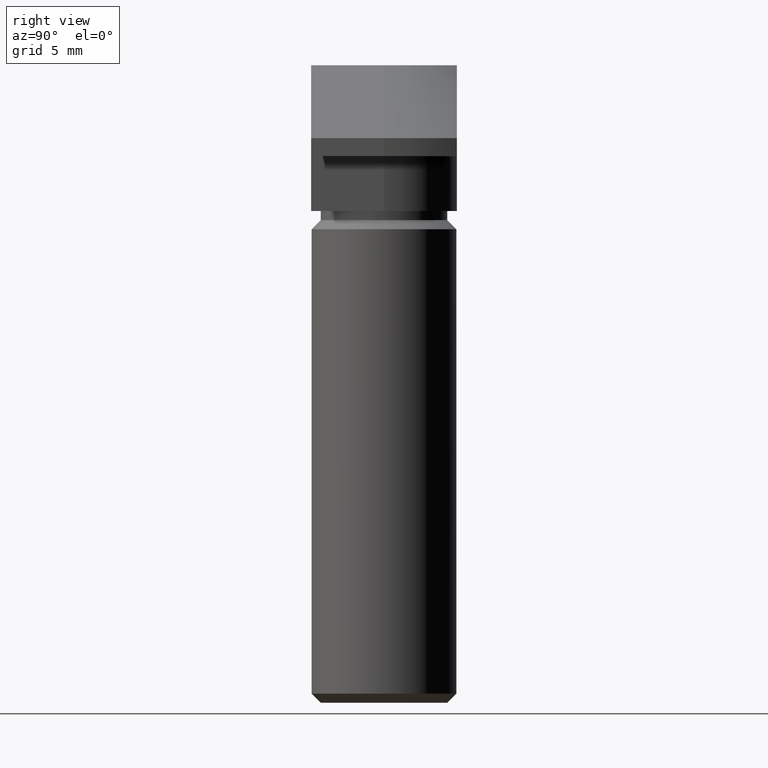
[diagram: clean part render]
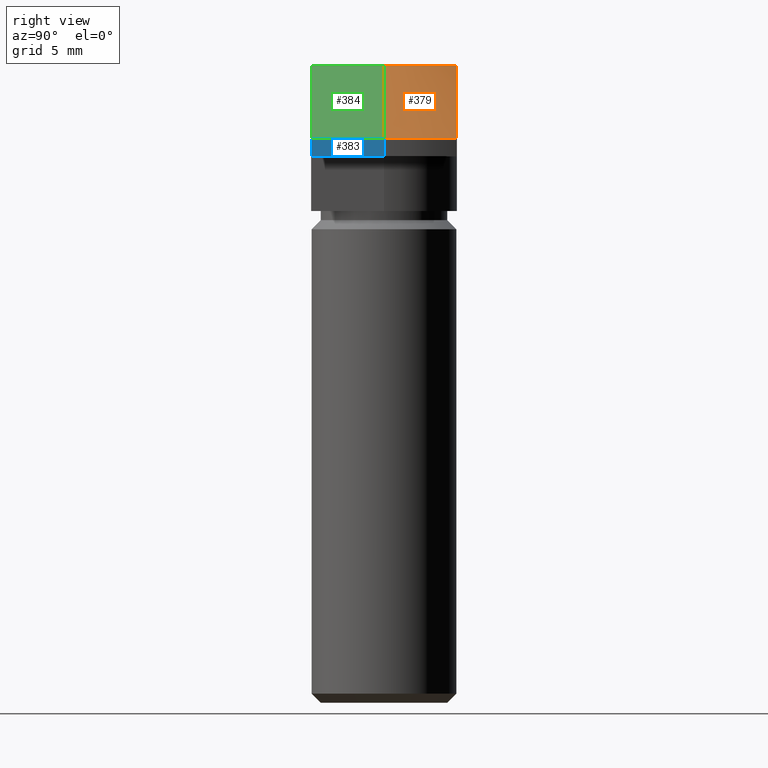
[diagram: same view with three faces highlighted in distinct colors, each labeled with its STEP entity id]
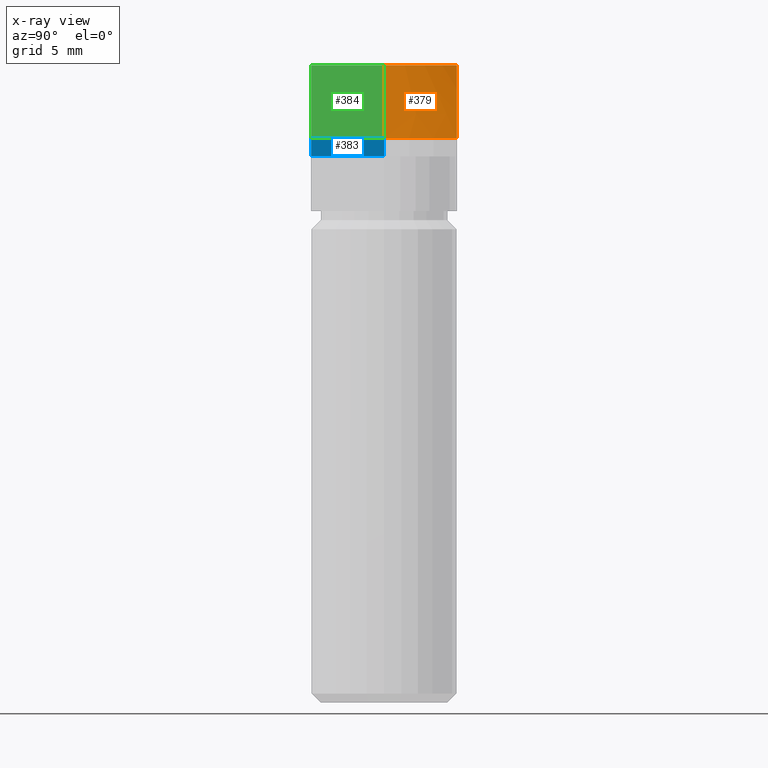
[diagram: x-ray of the same camera — body ghosted, the three highlighted faces saturated]
A machine part, right view with three faces highlighted in distinct colors.
The next image is the same camera in x-ray (body ghosted, the three faces saturated) — at least one of them is partly hidden behind the body in this view.
Their STEP definitions:

[orange] entity #379 — the highlighted conical surface has half-angle 45 deg.
#15=(
BOUNDED_CURVE()
B_SPLINE_CURVE(2,(#610,#611,#612),.UNSPECIFIED.,.F.,.F.)
B_SPLINE_CURVE_WITH_KNOTS((3,3),(0.,0.645810133031387),.UNSPECIFIED.)
CURVE()
GEOMETRIC_REPRESENTATION_ITEM()
RATIONAL_B_SPLINE_CURVE((1.,1.07257323111151,1.))
REPRESENTATION_ITEM('')
);
#35=LINE('',#616,#69);
#69=VECTOR('',#500,5.65685424949238);
#121=FACE_OUTER_BOUND('',#149,.T.);
#149=EDGE_LOOP('',(#305,#306,#307,#308));
#171=CIRCLE('',#416,5.);
#172=CIRCLE('',#417,9.);
#198=VERTEX_POINT('',#608);
#199=VERTEX_POINT('',#609);
#200=VERTEX_POINT('',#613);
#201=VERTEX_POINT('',#615);
#239=EDGE_CURVE('',#198,#199,#15,.T.);
#240=EDGE_CURVE('',#200,#198,#171,.T.);
#241=EDGE_CURVE('',#200,#201,#35,.T.);
#242=EDGE_CURVE('',#201,#199,#172,.T.);
#305=ORIENTED_EDGE('',*,*,#239,.F.);
#306=ORIENTED_EDGE('',*,*,#240,.F.);
#307=ORIENTED_EDGE('',*,*,#241,.T.);
#308=ORIENTED_EDGE('',*,*,#242,.T.);
#365=CONICAL_SURFACE('',#415,7.,45.);
#379=ADVANCED_FACE('',(#121),#365,.T.);
#415=AXIS2_PLACEMENT_3D('',#607,#496,#497);
#416=AXIS2_PLACEMENT_3D('',#614,#498,#499);
#417=AXIS2_PLACEMENT_3D('',#617,#501,#502);
#496=DIRECTION('center_axis',(0.,0.,-1.));
#497=DIRECTION('ref_axis',(1.,0.,0.));
#498=DIRECTION('center_axis',(2.04289535270664E-17,0.,1.));
#499=DIRECTION('ref_axis',(1.,0.,0.));
#500=DIRECTION('',(0.707106781186547,0.,-0.707106781186548));
#501=DIRECTION('center_axis',(2.9781283147877E-16,2.9781283147877E-16,1.));
#502=DIRECTION('ref_axis',(1.,1.2335811384724E-16,-3.08395284618099E-16));
#607=CARTESIAN_POINT('Origin',(0.,0.,-2.));
#608=CARTESIAN_POINT('',(3.,4.,0.));
#609=CARTESIAN_POINT('',(8.06225774829855,4.,-4.));
#610=CARTESIAN_POINT('Ctrl Pts',(3.,4.,-2.77555756156289E-16));
#611=CARTESIAN_POINT('Ctrl Pts',(4.80794919582092,4.,-1.08476951749255));
#612=CARTESIAN_POINT('Ctrl Pts',(8.06225774829855,4.,-4.));
#613=CARTESIAN_POINT('',(5.,0.,0.));
#614=CARTESIAN_POINT('Origin',(0.,0.,2.77555756156289E-16));
#615=CARTESIAN_POINT('',(9.,0.,-4.));
#616=CARTESIAN_POINT('',(7.,0.,-2.));
#617=CARTESIAN_POINT('Origin',(-1.11022302462516E-15,-1.11022302462516E-15,
-4.));

[blue] entity #383 — the highlighted planar face has unit normal (1, 0, 0).
#33=LINE('',#605,#67);
#37=LINE('',#620,#71);
#41=LINE('',#637,#75);
#42=LINE('',#638,#76);
#67=VECTOR('',#494,4.);
#71=VECTOR('',#506,1.);
#75=VECTOR('',#520,4.);
#76=VECTOR('',#521,1.);
#91=PLANE('',#423);
#125=FACE_OUTER_BOUND('',#153,.T.);
#153=EDGE_LOOP('',(#321,#322,#323,#324));
#196=VERTEX_POINT('',#602);
#197=VERTEX_POINT('',#604);
#201=VERTEX_POINT('',#615);
#206=VERTEX_POINT('',#636);
#237=EDGE_CURVE('',#196,#197,#33,.T.);
#244=EDGE_CURVE('',#201,#196,#37,.T.);
#251=EDGE_CURVE('',#201,#206,#41,.T.);
#252=EDGE_CURVE('',#197,#206,#42,.T.);
#321=ORIENTED_EDGE('',*,*,#244,.F.);
#322=ORIENTED_EDGE('',*,*,#251,.T.);
#323=ORIENTED_EDGE('',*,*,#252,.F.);
#324=ORIENTED_EDGE('',*,*,#237,.F.);
#383=ADVANCED_FACE('',(#125),#91,.T.);
#423=AXIS2_PLACEMENT_3D('',#635,#518,#519);
#494=DIRECTION('',(0.,-1.,0.));
#506=DIRECTION('',(0.,0.,-1.));
#518=DIRECTION('center_axis',(1.,0.,0.));
#519=DIRECTION('ref_axis',(0.,0.,-1.));
#520=DIRECTION('',(0.,-1.,0.));
#521=DIRECTION('',(0.,0.,1.));
#602=CARTESIAN_POINT('',(9.,0.,-5.));
#604=CARTESIAN_POINT('',(9.,-4.,-5.));
#605=CARTESIAN_POINT('',(9.,0.,-5.));
#615=CARTESIAN_POINT('',(9.,0.,-4.));
#620=CARTESIAN_POINT('',(9.,0.,-4.5));
#635=CARTESIAN_POINT('Origin',(9.,0.,-4.));
#636=CARTESIAN_POINT('',(9.,-4.,-4.));
#637=CARTESIAN_POINT('',(9.,0.,-4.));
#638=CARTESIAN_POINT('',(9.,-4.,-5.));

[green] entity #384 — the highlighted planar face has unit normal (0.7071, 0, 0.7071).
#35=LINE('',#616,#69);
#41=LINE('',#637,#75);
#43=LINE('',#641,#77);
#44=LINE('',#642,#78);
#69=VECTOR('',#500,5.65685424949238);
#75=VECTOR('',#520,4.);
#77=VECTOR('',#524,4.);
#78=VECTOR('',#525,5.65685424949238);
#92=PLANE('',#424);
#126=FACE_OUTER_BOUND('',#154,.T.);
#154=EDGE_LOOP('',(#325,#326,#327,#328));
#200=VERTEX_POINT('',#613);
#201=VERTEX_POINT('',#615);
#206=VERTEX_POINT('',#636);
#207=VERTEX_POINT('',#640);
#241=EDGE_CURVE('',#200,#201,#35,.T.);
#251=EDGE_CURVE('',#201,#206,#41,.T.);
#253=EDGE_CURVE('',#200,#207,#43,.T.);
#254=EDGE_CURVE('',#206,#207,#44,.T.);
#325=ORIENTED_EDGE('',*,*,#241,.F.);
#326=ORIENTED_EDGE('',*,*,#253,.T.);
#327=ORIENTED_EDGE('',*,*,#254,.F.);
#328=ORIENTED_EDGE('',*,*,#251,.F.);
#384=ADVANCED_FACE('',(#126),#92,.T.);
#424=AXIS2_PLACEMENT_3D('',#639,#522,#523);
#500=DIRECTION('',(0.707106781186547,0.,-0.707106781186548));
#520=DIRECTION('',(0.,-1.,0.));
#522=DIRECTION('center_axis',(0.707106781186548,0.,0.707106781186547));
#523=DIRECTION('ref_axis',(0.707106781186547,0.,-0.707106781186548));
#524=DIRECTION('',(0.,-1.,0.));
#525=DIRECTION('',(-0.707106781186547,0.,0.707106781186548));
#613=CARTESIAN_POINT('',(5.,0.,0.));
#615=CARTESIAN_POINT('',(9.,0.,-4.));
#616=CARTESIAN_POINT('',(7.,0.,-2.));
#636=CARTESIAN_POINT('',(9.,-4.,-4.));
#637=CARTESIAN_POINT('',(9.,0.,-4.));
#639=CARTESIAN_POINT('Origin',(5.,0.,0.));
#640=CARTESIAN_POINT('',(5.,-4.,0.));
#641=CARTESIAN_POINT('',(5.,0.,1.96261524244674E-16));
#642=CARTESIAN_POINT('',(9.,-4.,-4.));